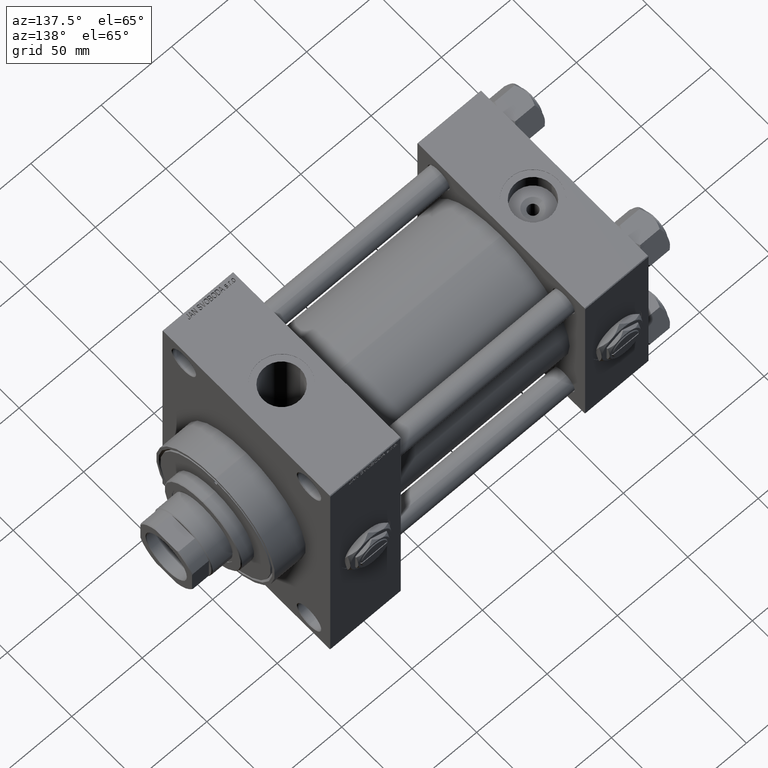
[diagram: clean part render]
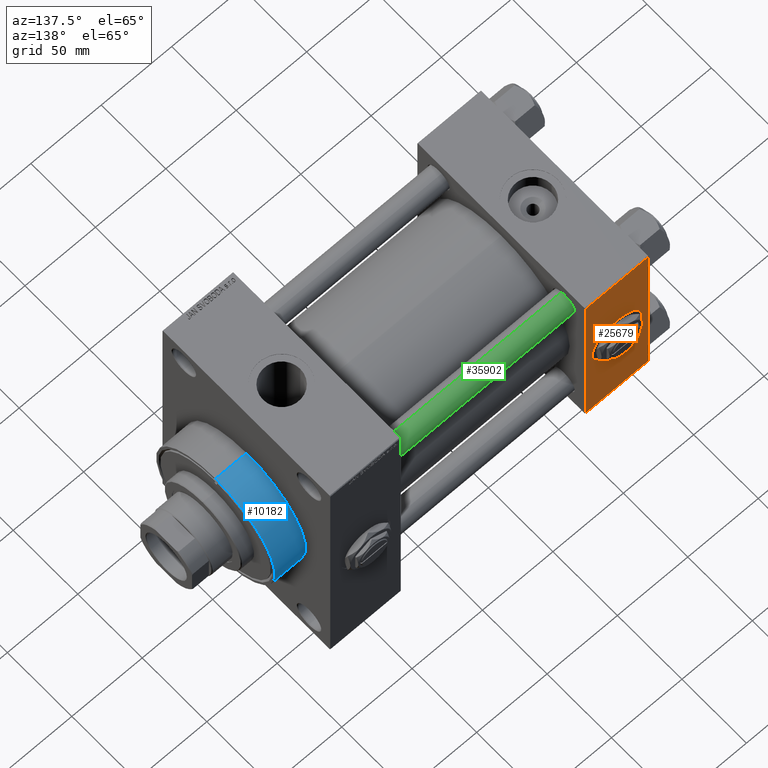
[diagram: same view with three faces highlighted in distinct colors, each labeled with its STEP entity id]
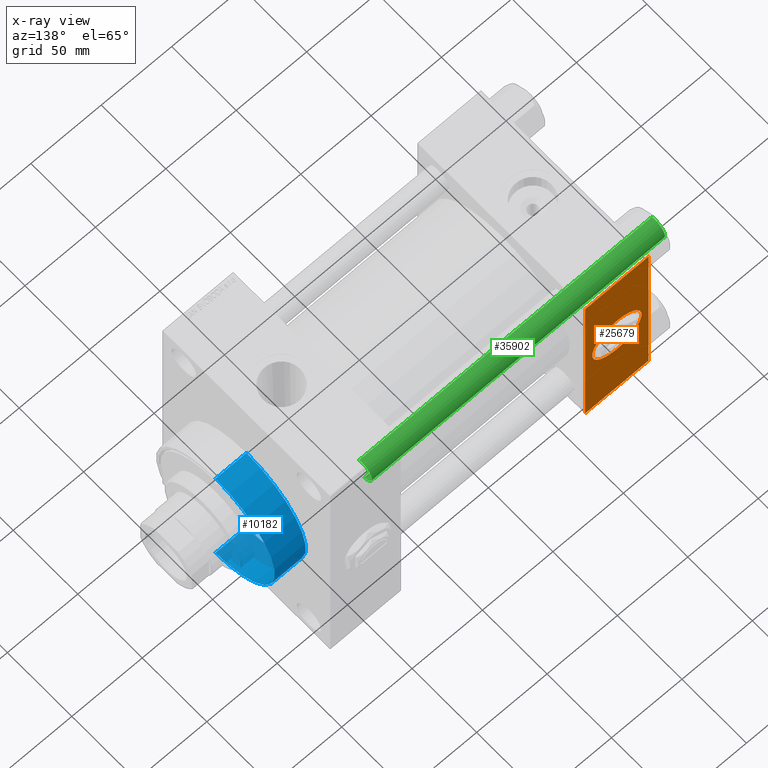
[diagram: x-ray of the same camera — body ghosted, the three highlighted faces saturated]
A machine part, auxiliary view with three faces highlighted in distinct colors.
The next image is the same camera in x-ray (body ghosted, the three faces saturated) — at least one of them is partly hidden behind the body in this view.
Their STEP definitions:

[orange] entity #25679 — the highlighted planar face has unit normal (0, 1, 0).
#590 = EDGE_CURVE ( 'NONE', #1902, #44447, #42428, .T. ) ;
#1561 = ORIENTED_EDGE ( 'NONE', *, *, #46882, .T. ) ;
#1902 = VERTEX_POINT ( 'NONE', #41891 ) ;
#2672 = LINE ( 'NONE', #3408, #37732 ) ;
#3408 = CARTESIAN_POINT ( 'NONE',  ( 45.00000000000000000, 65.00000000000000000, 65.00000000000001421 ) ) ;
#5745 = CIRCLE ( 'NONE', #8982, 17.50000000000000000 ) ;
#8982 = AXIS2_PLACEMENT_3D ( 'NONE', #15856, #40301, #36514 ) ;
#9451 = EDGE_LOOP ( 'NONE', ( #1561, #35164, #30717, #17943 ) ) ;
#10207 = DIRECTION ( 'NONE',  ( 0.000000000000000000, 0.000000000000000000, 1.000000000000000000 ) ) ;
#12023 = CARTESIAN_POINT ( 'NONE',  ( 0.000000000000000000, 65.00000000000000000, 65.00000000000001421 ) ) ;
#14823 = DIRECTION ( 'NONE',  ( 0.000000000000000000, 0.000000000000000000, -1.000000000000000000 ) ) ;
#14829 = FACE_BOUND ( 'NONE', #39309, .T. ) ;
#15082 = CARTESIAN_POINT ( 'NONE',  ( 45.00000000000000000, 65.00000000000000000, 65.00000000000001421 ) ) ;
#15155 = AXIS2_PLACEMENT_3D ( 'NONE', #15082, #30289, #38353 ) ;
#15856 = CARTESIAN_POINT ( 'NONE',  ( 22.50000000000000000, 65.00000000000000000, 0.000000000000000000 ) ) ;
#17309 = EDGE_CURVE ( 'NONE', #36960, #27271, #28295, .T. ) ;
#17943 = ORIENTED_EDGE ( 'NONE', *, *, #590, .T. ) ;
#18600 = DIRECTION ( 'NONE',  ( 0.000000000000000000, 0.000000000000000000, -1.000000000000000000 ) ) ;
#19038 = ORIENTED_EDGE ( 'NONE', *, *, #30398, .F. ) ;
#19364 = LINE ( 'NONE', #12023, #39837 ) ;
#20678 = DIRECTION ( 'NONE',  ( -1.000000000000000000, 0.000000000000000000, 0.000000000000000000 ) ) ;
#21752 = CARTESIAN_POINT ( 'NONE',  ( 0.000000000000000000, 65.00000000000000000, -64.49999999999995737 ) ) ;
#23466 = DIRECTION ( 'NONE',  ( 1.000000000000000000, 0.000000000000000000, 0.000000000000000000 ) ) ;
#23875 = ORIENTED_EDGE ( 'NONE', *, *, #47463, .F. ) ;
#24489 = CARTESIAN_POINT ( 'NONE',  ( 45.00000000000000000, 65.00000000000000000, -64.49999999999995737 ) ) ;
#24664 = VECTOR ( 'NONE', #23466, 1000.000000000000000 ) ;
#25630 = CARTESIAN_POINT ( 'NONE',  ( 22.50000000000000355, 65.00000000000000000, -17.50000000000000000 ) ) ;
#25679 = ADVANCED_FACE ( 'NONE', ( #14829, #34326 ), #31035, .T. ) ;
#27271 = VERTEX_POINT ( 'NONE', #21752 ) ;
#28295 = LINE ( 'NONE', #24489, #29553 ) ;
#29553 = VECTOR ( 'NONE', #20678, 1000.000000000000000 ) ;
#30289 = DIRECTION ( 'NONE',  ( -0.000000000000000000, 1.000000000000000000, 0.000000000000000000 ) ) ;
#30398 = EDGE_CURVE ( 'NONE', #39400, #39499, #5745, .T. ) ;
#30717 = ORIENTED_EDGE ( 'NONE', *, *, #38052, .F. ) ;
#30937 = CARTESIAN_POINT ( 'NONE',  ( 22.50000000000000000, 65.00000000000000000, 17.50000000000000000 ) ) ;
#31035 = PLANE ( 'NONE',  #15155 ) ;
#33902 = CARTESIAN_POINT ( 'NONE',  ( 45.00000000000000000, 65.00000000000000000, 64.49999999999998579 ) ) ;
#34326 = FACE_OUTER_BOUND ( 'NONE', #9451, .T. ) ;
#35164 = ORIENTED_EDGE ( 'NONE', *, *, #17309, .T. ) ;
#36514 = DIRECTION ( 'NONE',  ( 0.000000000000000000, 0.000000000000000000, 1.000000000000000000 ) ) ;
#36960 = VERTEX_POINT ( 'NONE', #46464 ) ;
#37732 = VECTOR ( 'NONE', #18600, 1000.000000000000000 ) ;
#38052 = EDGE_CURVE ( 'NONE', #1902, #27271, #19364, .T. ) ;
#38353 = DIRECTION ( 'NONE',  ( 0.000000000000000000, -0.000000000000000000, 1.000000000000000000 ) ) ;
#39309 = EDGE_LOOP ( 'NONE', ( #23875, #19038 ) ) ;
#39400 = VERTEX_POINT ( 'NONE', #25630 ) ;
#39499 = VERTEX_POINT ( 'NONE', #30937 ) ;
#39837 = VECTOR ( 'NONE', #14823, 1000.000000000000000 ) ;
#40301 = DIRECTION ( 'NONE',  ( 0.000000000000000000, 1.000000000000000000, 0.000000000000000000 ) ) ;
#40547 = CARTESIAN_POINT ( 'NONE',  ( 22.50000000000000000, 65.00000000000000000, 0.000000000000000000 ) ) ;
#41891 = CARTESIAN_POINT ( 'NONE',  ( 0.000000000000000000, 65.00000000000000000, 64.49999999999998579 ) ) ;
#42428 = LINE ( 'NONE', #45978, #24664 ) ;
#43413 = CIRCLE ( 'NONE', #44204, 17.50000000000000000 ) ;
#44204 = AXIS2_PLACEMENT_3D ( 'NONE', #40547, #48392, #10207 ) ;
#44447 = VERTEX_POINT ( 'NONE', #33902 ) ;
#45978 = CARTESIAN_POINT ( 'NONE',  ( 45.00000000000000000, 65.00000000000000000, 64.49999999999998579 ) ) ;
#46464 = CARTESIAN_POINT ( 'NONE',  ( 45.00000000000000000, 65.00000000000000000, -64.49999999999995737 ) ) ;
#46882 = EDGE_CURVE ( 'NONE', #44447, #36960, #2672, .T. ) ;
#47463 = EDGE_CURVE ( 'NONE', #39499, #39400, #43413, .T. ) ;
#48392 = DIRECTION ( 'NONE',  ( 0.000000000000000000, 1.000000000000000000, 0.000000000000000000 ) ) ;

[blue] entity #10182 — the highlighted cylindrical surface (partial cylindrical patch) has radius 46 mm, axis along (-1, -0, -0).
#1226 = CARTESIAN_POINT ( 'NONE',  ( 247.9999999999999716, 5.633375276077824704E-15, -46.00000000000000000 ) ) ;
#2292 = DIRECTION ( 'NONE',  ( -1.000000000000000000, -0.000000000000000000, -0.000000000000000000 ) ) ;
#5008 = CARTESIAN_POINT ( 'NONE',  ( 225.9999999999999716, 0.000000000000000000, 0.000000000000000000 ) ) ;
#6541 = EDGE_CURVE ( 'NONE', #27519, #46148, #39729, .T. ) ;
#7225 = DIRECTION ( 'NONE',  ( 0.000000000000000000, 0.000000000000000000, -1.000000000000000000 ) ) ;
#7931 = CARTESIAN_POINT ( 'NONE',  ( 247.9999999999999716, 0.000000000000000000, 46.00000000000000000 ) ) ;
#8012 = CARTESIAN_POINT ( 'NONE',  ( 247.9999999999999716, 5.633375276077824704E-15, -46.00000000000000000 ) ) ;
#10182 = ADVANCED_FACE ( 'NONE', ( #15355 ), #46188, .T. ) ;
#11549 = DIRECTION ( 'NONE',  ( 0.000000000000000000, 0.000000000000000000, 1.000000000000000000 ) ) ;
#12846 = CARTESIAN_POINT ( 'NONE',  ( 225.9999999999999716, 5.633375276077824704E-15, -46.00000000000000000 ) ) ;
#13876 = ORIENTED_EDGE ( 'NONE', *, *, #41526, .T. ) ;
#14045 = CARTESIAN_POINT ( 'NONE',  ( 247.9999999999999716, 0.000000000000000000, 0.000000000000000000 ) ) ;
#15355 = FACE_OUTER_BOUND ( 'NONE', #27042, .T. ) ;
#16487 = CIRCLE ( 'NONE', #43944, 46.00000000000000000 ) ;
#17962 = CARTESIAN_POINT ( 'NONE',  ( 247.9999999999999716, 0.000000000000000000, 0.000000000000000000 ) ) ;
#20181 = DIRECTION ( 'NONE',  ( 0.000000000000000000, 0.000000000000000000, -1.000000000000000000 ) ) ;
#20349 = AXIS2_PLACEMENT_3D ( 'NONE', #5008, #36126, #20181 ) ;
#21274 = ORIENTED_EDGE ( 'NONE', *, *, #6541, .T. ) ;
#25956 = EDGE_CURVE ( 'NONE', #39268, #46148, #26420, .T. ) ;
#26420 = LINE ( 'NONE', #7931, #35390 ) ;
#27002 = LINE ( 'NONE', #8012, #35968 ) ;
#27042 = EDGE_LOOP ( 'NONE', ( #45328, #13876, #21274, #38004 ) ) ;
#27519 = VERTEX_POINT ( 'NONE', #12846 ) ;
#28374 = VERTEX_POINT ( 'NONE', #1226 ) ;
#34297 = DIRECTION ( 'NONE',  ( 1.000000000000000000, 0.000000000000000000, 0.000000000000000000 ) ) ;
#35390 = VECTOR ( 'NONE', #49647, 1000.000000000000000 ) ;
#35968 = VECTOR ( 'NONE', #39109, 1000.000000000000000 ) ;
#36126 = DIRECTION ( 'NONE',  ( 1.000000000000000000, 0.000000000000000000, 0.000000000000000000 ) ) ;
#38004 = ORIENTED_EDGE ( 'NONE', *, *, #25956, .F. ) ;
#38979 = AXIS2_PLACEMENT_3D ( 'NONE', #17962, #2292, #11549 ) ;
#39109 = DIRECTION ( 'NONE',  ( -1.000000000000000000, -0.000000000000000000, -0.000000000000000000 ) ) ;
#39268 = VERTEX_POINT ( 'NONE', #40035 ) ;
#39729 = CIRCLE ( 'NONE', #20349, 46.00000000000000000 ) ;
#40035 = CARTESIAN_POINT ( 'NONE',  ( 247.9999999999999716, 0.000000000000000000, 46.00000000000000000 ) ) ;
#40330 = EDGE_CURVE ( 'NONE', #28374, #39268, #16487, .T. ) ;
#41526 = EDGE_CURVE ( 'NONE', #28374, #27519, #27002, .T. ) ;
#43944 = AXIS2_PLACEMENT_3D ( 'NONE', #14045, #34297, #7225 ) ;
#45328 = ORIENTED_EDGE ( 'NONE', *, *, #40330, .F. ) ;
#46148 = VERTEX_POINT ( 'NONE', #47253 ) ;
#46188 = CYLINDRICAL_SURFACE ( 'NONE', #38979, 46.00000000000000000 ) ;
#47253 = CARTESIAN_POINT ( 'NONE',  ( 225.9999999999999716, 0.000000000000000000, 46.00000000000000000 ) ) ;
#49647 = DIRECTION ( 'NONE',  ( -1.000000000000000000, -0.000000000000000000, -0.000000000000000000 ) ) ;

[green] entity #35902 — the highlighted cylindrical surface (edge-blend (fillet) strip) has radius 8 mm, axis along (-1, -0, 0).
#741 = CARTESIAN_POINT ( 'NONE',  ( 0.000000000000000000, 0.000000000000000000, 209.0000000000000000 ) ) ;
#1508 = ORIENTED_EDGE ( 'NONE', *, *, #3264, .T. ) ;
#1842 = ORIENTED_EDGE ( 'NONE', *, *, #16798, .T. ) ;
#2264 = CIRCLE ( 'NONE', #20013, 8.000000000000000000 ) ;
#3264 = EDGE_CURVE ( 'NONE', #43394, #43210, #2264, .T. ) ;
#3636 = VECTOR ( 'NONE', #25861, 1000.000000000000000 ) ;
#3971 = CARTESIAN_POINT ( 'NONE',  ( -8.000000000000000000, 0.000000000000000000, 209.0000000000000000 ) ) ;
#4789 = DIRECTION ( 'NONE',  ( 0.000000000000000000, 0.000000000000000000, -1.000000000000000000 ) ) ;
#5029 = DIRECTION ( 'NONE',  ( -1.000000000000000000, 0.000000000000000000, 0.000000000000000000 ) ) ;
#5049 = VECTOR ( 'NONE', #38373, 1000.000000000000000 ) ;
#5125 = CARTESIAN_POINT ( 'NONE',  ( 8.000000000000000000, 9.797174393178825657E-16, 208.4999999999999716 ) ) ;
#5280 = DIRECTION ( 'NONE',  ( -0.000000000000000000, -0.000000000000000000, -1.000000000000000000 ) ) ;
#5327 = EDGE_LOOP ( 'NONE', ( #42704, #1842, #1508, #12394 ) ) ;
#10230 = EDGE_CURVE ( 'NONE', #40504, #43210, #49056, .T. ) ;
#12394 = ORIENTED_EDGE ( 'NONE', *, *, #10230, .F. ) ;
#14203 = LINE ( 'NONE', #14704, #3636 ) ;
#14704 = CARTESIAN_POINT ( 'NONE',  ( 8.000000000000000000, 9.797174393178825657E-16, 209.0000000000000000 ) ) ;
#16798 = EDGE_CURVE ( 'NONE', #49563, #43394, #14203, .T. ) ;
#20013 = AXIS2_PLACEMENT_3D ( 'NONE', #24536, #20479, #31894 ) ;
#20479 = DIRECTION ( 'NONE',  ( -0.000000000000000000, -0.000000000000000000, 1.000000000000000000 ) ) ;
#23286 = CARTESIAN_POINT ( 'NONE',  ( -8.000000000000000000, 0.000000000000000000, 0.5000000000000004441 ) ) ;
#24005 = CIRCLE ( 'NONE', #46594, 8.000000000000000000 ) ;
#24507 = CARTESIAN_POINT ( 'NONE',  ( 0.000000000000000000, 0.000000000000000000, 208.4999999999999716 ) ) ;
#24536 = CARTESIAN_POINT ( 'NONE',  ( 0.000000000000000000, 0.000000000000000000, 0.5000000000000004441 ) ) ;
#25861 = DIRECTION ( 'NONE',  ( -0.000000000000000000, -0.000000000000000000, -1.000000000000000000 ) ) ;
#31894 = DIRECTION ( 'NONE',  ( 1.000000000000000000, 0.000000000000000000, 0.000000000000000000 ) ) ;
#32123 = CYLINDRICAL_SURFACE ( 'NONE', #38983, 8.000000000000000000 ) ;
#34554 = CARTESIAN_POINT ( 'NONE',  ( -8.000000000000000000, 0.000000000000000000, 208.4999999999999716 ) ) ;
#35902 = ADVANCED_FACE ( 'NONE', ( #43463 ), #32123, .T. ) ;
#38373 = DIRECTION ( 'NONE',  ( -0.000000000000000000, -0.000000000000000000, -1.000000000000000000 ) ) ;
#38983 = AXIS2_PLACEMENT_3D ( 'NONE', #741, #5280, #5029 ) ;
#40504 = VERTEX_POINT ( 'NONE', #34554 ) ;
#42704 = ORIENTED_EDGE ( 'NONE', *, *, #46108, .T. ) ;
#43210 = VERTEX_POINT ( 'NONE', #23286 ) ;
#43394 = VERTEX_POINT ( 'NONE', #47013 ) ;
#43463 = FACE_OUTER_BOUND ( 'NONE', #5327, .T. ) ;
#46108 = EDGE_CURVE ( 'NONE', #40504, #49563, #24005, .T. ) ;
#46594 = AXIS2_PLACEMENT_3D ( 'NONE', #24507, #4789, #47002 ) ;
#47002 = DIRECTION ( 'NONE',  ( 1.000000000000000000, 0.000000000000000000, 0.000000000000000000 ) ) ;
#47013 = CARTESIAN_POINT ( 'NONE',  ( 8.000000000000000000, 9.797174393178825657E-16, 0.5000000000000004441 ) ) ;
#49056 = LINE ( 'NONE', #3971, #5049 ) ;
#49563 = VERTEX_POINT ( 'NONE', #5125 ) ;